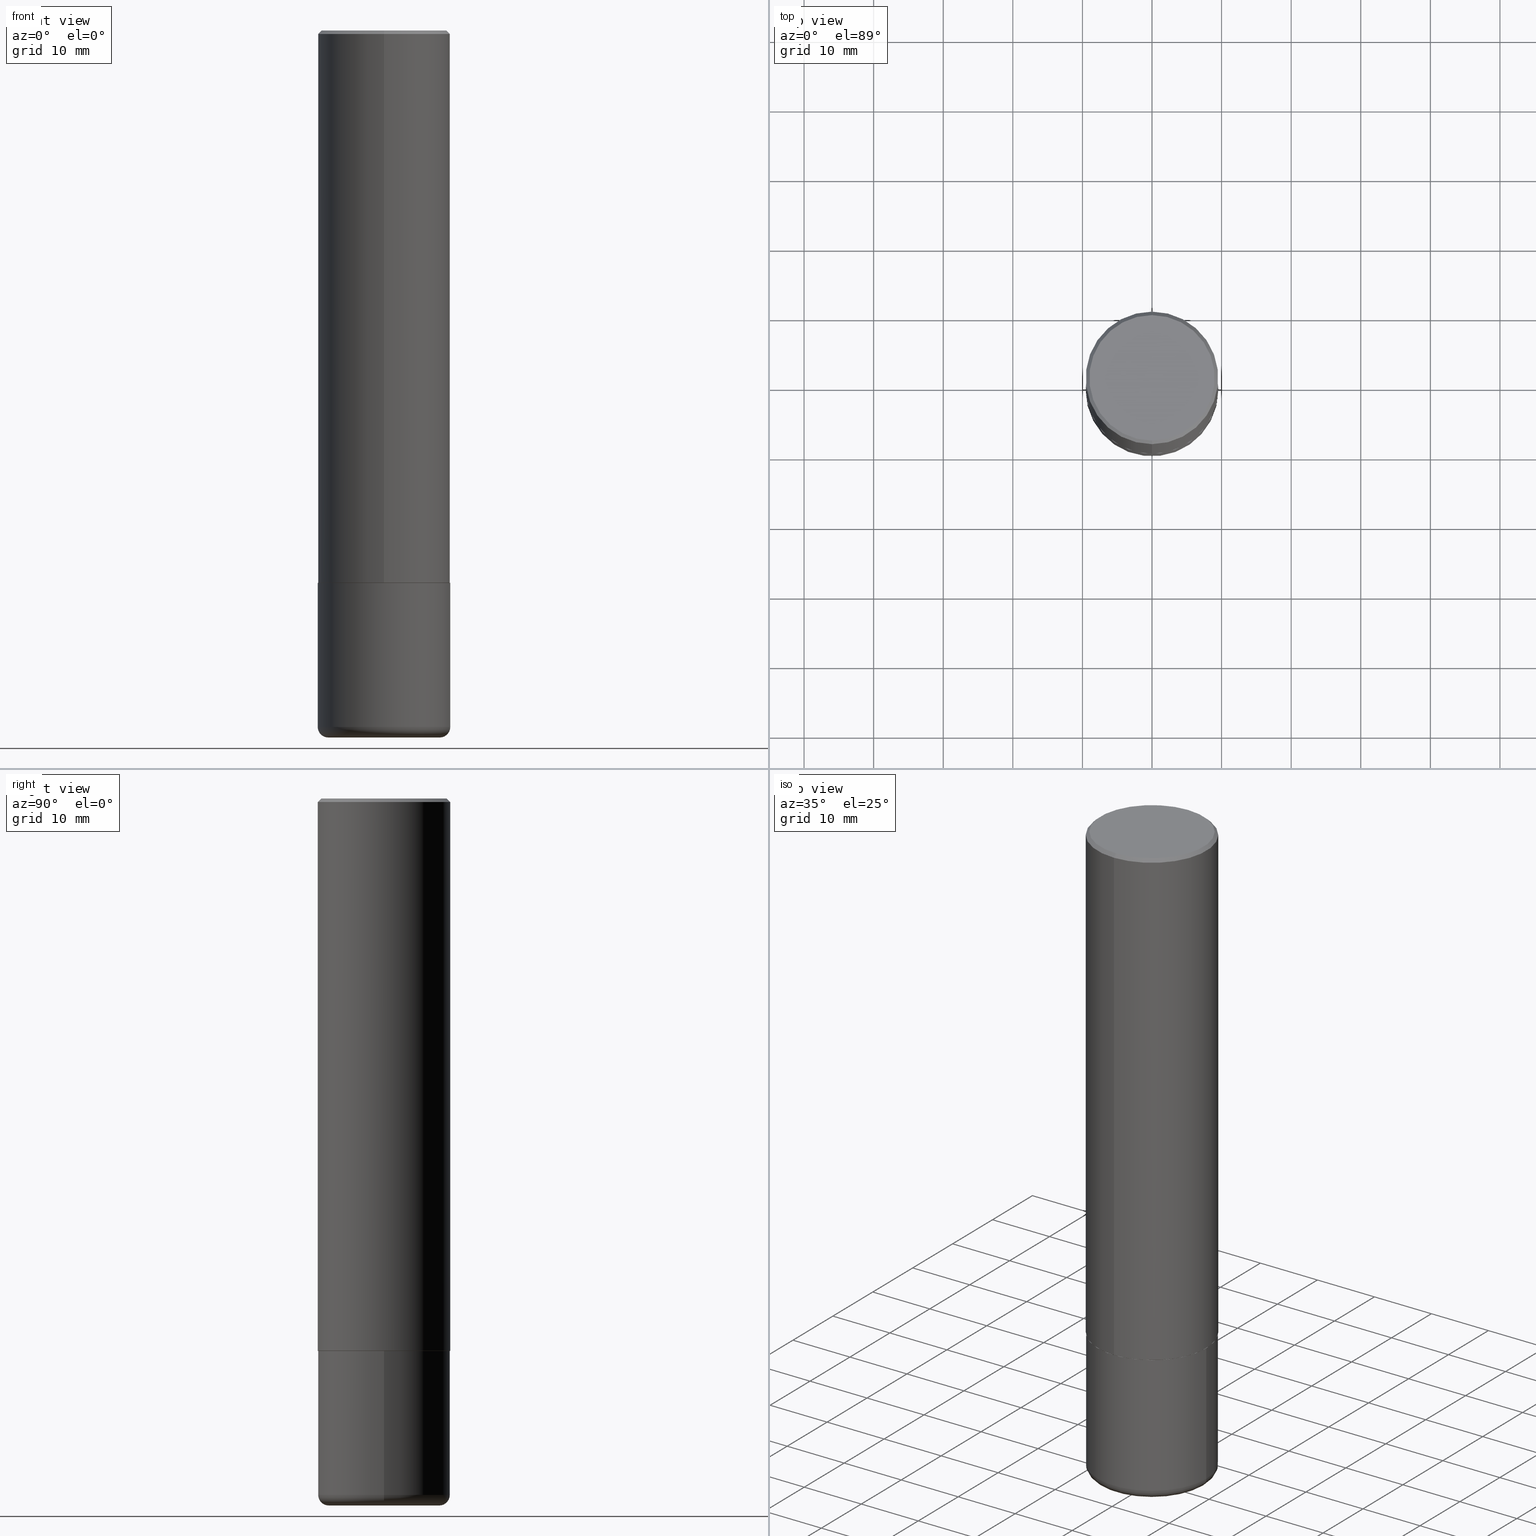
[diagram: canonical four-view strip — front | top / right | iso, engineering-drawing reading convention]
A machine part, canonical four-view strip (front | top / right | iso — engineering-drawing reading convention). The complete STEP part file that produces these views, byte-faithful:
ISO-10303-21;
HEADER;
FILE_DESCRIPTION (( 'STEP AP203' ),
    '1' );
FILE_NAME ('37276.STEP',
    '2024-03-01T22:56:28',
    ( '' ),
    ( '' ),
    'SwSTEP 2.0',
    'SolidWorks 2023',
    '' );
FILE_SCHEMA (( 'CONFIG_CONTROL_DESIGN' ));
ENDSEC;

DATA;
#1 = PRODUCT_DEFINITION_SHAPE ( 'NONE', 'NONE',  #283 ) ;
#2 = ADVANCED_FACE ( 'NONE', ( #366 ), #333, .T. ) ;
#3 = DIRECTION ( 'NONE',  ( -2.445468806185136597E-29, 3.491481338843145583E-15, 1.000000000000000000 ) ) ;
#4 = APPROVAL_ROLE ( '' ) ;
#5 =( GEOMETRIC_REPRESENTATION_CONTEXT ( 3 ) GLOBAL_UNCERTAINTY_ASSIGNED_CONTEXT ( ( #304 ) ) GLOBAL_UNIT_ASSIGNED_CONTEXT ( ( #265, #69, #168 ) ) REPRESENTATION_CONTEXT ( 'NONE', 'WORKASPACE' ) );
#6 = LINE ( 'NONE', #319, #210 ) ;
#7 = ADVANCED_FACE ( 'NONE', ( #116 ), #148, .T. ) ;
#8 = CARTESIAN_POINT ( 'NONE',  ( 7.641292512262471991E-29, -1.090502772753799986E-14, -3.124000000000000554 ) ) ;
#9 = FACE_OUTER_BOUND ( 'NONE', #237, .T. ) ;
#10 = AXIS2_PLACEMENT_3D ( 'NONE', #141, #363, #121 ) ;
#11 = VERTEX_POINT ( 'NONE', #375 ) ;
#12 = ORIENTED_EDGE ( 'NONE', *, *, #266, .F. ) ;
#13 = PLANE ( 'NONE',  #10 ) ;
#14 = VECTOR ( 'NONE', #23, 39.37007874015748143 ) ;
#15 = PRODUCT_DEFINITION_FORMATION_WITH_SPECIFIED_SOURCE ( 'ANY', '', #25, .NOT_KNOWN. ) ;
#16 = ORIENTED_EDGE ( 'NONE', *, *, #211, .T. ) ;
#17 = VERTEX_POINT ( 'NONE', #220 ) ;
#18 = ORIENTED_EDGE ( 'NONE', *, *, #46, .T. ) ;
#19 = CARTESIAN_POINT ( 'NONE',  ( 9.635147096369438236E-29, -1.375643647504199401E-14, -3.939999999999999947 ) ) ;
#20 = DIRECTION ( 'NONE',  ( -2.445468806185136597E-29, 3.491481338843145583E-15, 1.000000000000000000 ) ) ;
#21 = AXIS2_PLACEMENT_3D ( 'NONE', #51, #395, #403 ) ;
#22 = DIRECTION ( 'NONE',  ( -2.445468806185136597E-29, 3.491481338843145583E-15, 1.000000000000000000 ) ) ;
#23 = DIRECTION ( 'NONE',  ( -4.851104656540961119E-15, -0.7071067811865495711, -0.7071067811865454633 ) ) ;
#24 = FACE_OUTER_BOUND ( 'NONE', #336, .T. ) ;
#25 = PRODUCT ( '37276', '37276', '', ( #386 ) ) ;
#26 = DIRECTION ( 'NONE',  ( -2.445996322747269804E-29, 3.490725905101792415E-15, 1.000000000000000000 ) ) ;
#27 = DIRECTION ( 'NONE',  ( -2.445996322747269804E-29, 3.490725905101792415E-15, 1.000000000000000000 ) ) ;
#28 = DIRECTION ( 'NONE',  ( 1.000000000000000000, -6.982962677686269077E-15, 4.883557194083113462E-29 ) ) ;
#29 = APPROVAL_DATE_TIME ( #316, #42 ) ;
#30 = CARTESIAN_POINT ( 'NONE',  ( 9.781875224740546387E-29, -1.396592535537258233E-14, -4.000000000000000000 ) ) ;
#31 = LOCAL_TIME ( 17, 56, 28.00000000000000000, #98 ) ;
#32 = DIRECTION ( 'NONE',  ( -6.982962677686266711E-15, -1.000000000000000000, 2.921762560068730595E-15 ) ) ;
#33 = PERSON_AND_ORGANIZATION_ROLE ( 'creator' ) ;
#34 = EDGE_CURVE ( 'NONE', #295, #45, #296, .T. ) ;
#35 = PERSON_AND_ORGANIZATION ( #137, #322 ) ;
#36 = DIRECTION ( 'NONE',  ( -6.982962677686266711E-15, -1.000000000000000000, 3.490725905101792415E-15 ) ) ;
#37 = CALENDAR_DATE ( 2024, 1, 3 ) ;
#38 = DIRECTION ( 'NONE',  ( -2.445468806185136877E-29, 3.491481338843145188E-15, 1.000000000000000000 ) ) ;
#39 = CIRCLE ( 'NONE', #190, 0.3150000000000000577 ) ;
#40 = VECTOR ( 'NONE', #138, 39.37007874015748143 ) ;
#41 = EDGE_CURVE ( 'NONE', #404, #201, #135, .T. ) ;
#42 = APPROVAL ( #196, 'UNSPECIFIED' ) ;
#43 = ORIENTED_EDGE ( 'NONE', *, *, #338, .T. ) ;
#44 = CONICAL_SURFACE ( 'NONE', #86, 0.3749999999999999445, 0.7853981633974477239 ) ;
#45 = VERTEX_POINT ( 'NONE', #65 ) ;
#46 = EDGE_CURVE ( 'NONE', #11, #401, #261, .T. ) ;
#47 = APPROVAL ( #411, 'UNSPECIFIED' ) ;
#48 = ORIENTED_EDGE ( 'NONE', *, *, #79, .T. ) ;
#49 = EDGE_CURVE ( 'NONE', #201, #17, #337, .T. ) ;
#50 = ORIENTED_EDGE ( 'NONE', *, *, #266, .T. ) ;
#51 = CARTESIAN_POINT ( 'NONE',  ( 7.642090019328551865E-29, -1.091087918388483118E-14, -3.125000000000000000 ) ) ;
#52 = DIRECTION ( 'NONE',  ( -2.445468806185136597E-29, 3.491481338843145583E-15, 1.000000000000000000 ) ) ;
#53 = CARTESIAN_POINT ( 'NONE',  ( -2.611628041454587088E-15, -0.3740000000000109348, -3.124999999999999112 ) ) ;
#54 = DIRECTION ( 'NONE',  ( -2.445996322747269804E-29, 3.490725905101792415E-15, 1.000000000000000000 ) ) ;
#55 = CARTESIAN_POINT ( 'NONE',  ( -2.611628041454587088E-15, -0.3740000000000109348, -3.124999999999999112 ) ) ;
#56 = DIRECTION ( 'NONE',  ( 1.000000000000000000, -6.982962677686266711E-15, 0.000000000000000000 ) ) ;
#57 = CLOSED_SHELL ( 'NONE', ( #7, #194, #172, #256, #2, #405, #111, #126 ) ) ;
#58 = DIRECTION ( 'NONE',  ( -2.445996322747269804E-29, 3.490725905101792415E-15, 1.000000000000000000 ) ) ;
#59 = AXIS2_PLACEMENT_3D ( 'NONE', #170, #3, #127 ) ;
#60 = ADVANCED_FACE ( 'NONE', ( #94 ), #307, .T. ) ;
#61 = COORDINATED_UNIVERSAL_TIME_OFFSET ( 5, 0, .BEHIND. ) ;
#62 = CARTESIAN_POINT ( 'NONE',  ( 2.618611004132350016E-15, 0.3749999999999998890, -0.02000000000000139513 ) ) ;
#63 = CARTESIAN_POINT ( 'NONE',  ( 2.618611004132350016E-15, 0.3749999999999998890, -0.02000000000000139513 ) ) ;
#64 = DATE_AND_TIME ( #92, #286 ) ;
#65 = CARTESIAN_POINT ( 'NONE',  ( 0.3749999999999999445, -1.637504747917434403E-14, -3.939999999999999947 ) ) ;
#66 = CARTESIAN_POINT ( 'NONE',  ( 0.000000000000000000, 0.000000000000000000, 0.000000000000000000 ) ) ;
#67 = EDGE_CURVE ( 'NONE', #205, #45, #217, .T. ) ;
#68 = PERSON_AND_ORGANIZATION ( #137, #322 ) ;
#69 =( NAMED_UNIT ( * ) PLANE_ANGLE_UNIT ( ) SI_UNIT ( $, .RADIAN. ) );
#70 = CARTESIAN_POINT ( 'NONE',  ( -2.618611004132276258E-15, -0.3750000000000113243, -3.123999999999999222 ) ) ;
#71 = CALENDAR_DATE ( 2024, 1, 3 ) ;
#72 = CARTESIAN_POINT ( 'NONE',  ( 4.891992645494561398E-31, -6.981451810203614264E-17, -0.02000000000000008715 ) ) ;
#73 = CARTESIAN_POINT ( 'NONE',  ( 9.635147096369438236E-29, -1.375643647504199401E-14, -3.939999999999999947 ) ) ;
#74 = AXIS2_PLACEMENT_3D ( 'NONE', #216, #390, #163 ) ;
#75 = DIRECTION ( 'NONE',  ( -6.982962677686265922E-15, -1.000000000000000000, 2.913971193241877611E-15 ) ) ;
#76 = EDGE_CURVE ( 'NONE', #81, #17, #367, .T. ) ;
#77 = CIRCLE ( 'NONE', #80, 0.3739999999999999991 ) ;
#78 = DIRECTION ( 'NONE',  ( -6.982962677686266711E-15, -1.000000000000000000, 2.921762560068730595E-15 ) ) ;
#79 = EDGE_CURVE ( 'NONE', #205, #105, #39, .T. ) ;
#80 = AXIS2_PLACEMENT_3D ( 'NONE', #293, #162, #78 ) ;
#81 = VERTEX_POINT ( 'NONE', #62 ) ;
#82 = EDGE_LOOP ( 'NONE', ( #298, #108, #207, #368 ) ) ;
#83 = EDGE_LOOP ( 'NONE', ( #18, #303 ) ) ;
#84 = EDGE_LOOP ( 'NONE', ( #113, #107, #43, #278 ) ) ;
#85 = ORIENTED_EDGE ( 'NONE', *, *, #242, .F. ) ;
#86 = AXIS2_PLACEMENT_3D ( 'NONE', #373, #208, #334 ) ;
#87 = ORIENTED_EDGE ( 'NONE', *, *, #356, .T. ) ;
#88 = CARTESIAN_POINT ( 'NONE',  ( 7.643738508585217927E-29, -1.090851845344310125E-14, -3.125000000000000000 ) ) ;
#89 = DIMENSIONAL_EXPONENTS ( 1.000000000000000000, 0.000000000000000000, 0.000000000000000000, 0.000000000000000000, 0.000000000000000000, 0.000000000000000000, 0.000000000000000000 ) ;
#90 = DIRECTION ( 'NONE',  ( -6.982962677686265922E-15, -1.000000000000000000, 3.490725905101792021E-15 ) ) ;
#91 = ADVANCED_FACE ( 'NONE', ( #184 ), #93, .T. ) ;
#92 = CALENDAR_DATE ( 2024, 1, 3 ) ;
#93 = TOROIDAL_SURFACE ( 'NONE', #123, 0.3150000000000000577, 0.05999999999999994227 ) ;
#94 = FACE_OUTER_BOUND ( 'NONE', #409, .T. ) ;
#95 = CIRCLE ( 'NONE', #244, 0.3749999999999999445 ) ;
#96 = DIRECTION ( 'NONE',  ( 1.000000000000000000, 0.000000000000000000, 0.000000000000000000 ) ) ;
#97 = MANIFOLD_SOLID_BREP ( 'Body-Move/Copy2[2]', #57 ) ;
#98 = COORDINATED_UNIVERSAL_TIME_OFFSET ( 5, 0, .BEHIND. ) ;
#99 = CARTESIAN_POINT ( 'NONE',  ( 9.781875224740546387E-29, -1.396592535537258233E-14, -4.000000000000000000 ) ) ;
#100 = AXIS2_PLACEMENT_3D ( 'NONE', #357, #323, #32 ) ;
#101 = PERSON_AND_ORGANIZATION ( #137, #322 ) ;
#102 = LINE ( 'NONE', #157, #193 ) ;
#103 = APPLICATION_CONTEXT ( 'configuration controlled 3d designs of mechanical parts and assemblies' ) ;
#104 = APPROVAL_PERSON_ORGANIZATION ( #259, #154, #342 ) ;
#105 = VERTEX_POINT ( 'NONE', #189 ) ;
#106 = EDGE_LOOP ( 'NONE', ( #400, #204, #331, #182 ) ) ;
#107 = ORIENTED_EDGE ( 'NONE', *, *, #242, .T. ) ;
#108 = ORIENTED_EDGE ( 'NONE', *, *, #34, .T. ) ;
#109 = CONICAL_SURFACE ( 'NONE', #100, 0.3739999999999999991, 0.7853981633977213939 ) ;
#110 = EDGE_LOOP ( 'NONE', ( #12, #274, #87, #271 ) ) ;
#111 = ADVANCED_FACE ( 'NONE', ( #309 ), #146, .F. ) ;
#112 = CC_DESIGN_DATE_AND_TIME_ASSIGNMENT ( #312, #288, ( #283 ) ) ;
#113 = ORIENTED_EDGE ( 'NONE', *, *, #272, .F. ) ;
#114 = EDGE_LOOP ( 'NONE', ( #362, #85 ) ) ;
#115 = AXIS2_PLACEMENT_3D ( 'NONE', #186, #27, #281 ) ;
#116 = FACE_OUTER_BOUND ( 'NONE', #402, .T. ) ;
#117 = EDGE_CURVE ( 'NONE', #294, #165, #142, .T. ) ;
#118 = DIRECTION ( 'NONE',  ( -6.982962677686266711E-15, -1.000000000000000000, 3.494488891895537218E-15 ) ) ;
#119 = COORDINATED_UNIVERSAL_TIME_OFFSET ( 5, 0, .BEHIND. ) ;
#120 = CARTESIAN_POINT ( 'NONE',  ( 9.635147096369438236E-29, -1.375643647504199401E-14, -3.939999999999999947 ) ) ;
#121 = DIRECTION ( 'NONE',  ( -1.000000000000000000, 6.982962677686265922E-15, -4.876176775795935793E-29 ) ) ;
#122 = PERSON_AND_ORGANIZATION ( #137, #322 ) ;
#123 = AXIS2_PLACEMENT_3D ( 'NONE', #19, #20, #248 ) ;
#124 = CARTESIAN_POINT ( 'NONE',  ( -8.346053035564447328E-45, 1.191080430729187510E-30, 3.412128202298525830E-16 ) ) ;
#125 = APPROVAL_PERSON_ORGANIZATION ( #35, #42, #257 ) ;
#126 = ADVANCED_FACE ( 'NONE', ( #9 ), #129, .F. ) ;
#127 = DIRECTION ( 'NONE',  ( 1.000000000000000000, -6.982962677686267499E-15, 0.000000000000000000 ) ) ;
#128 = ORIENTED_EDGE ( 'NONE', *, *, #67, .F. ) ;
#129 = PLANE ( 'NONE',  #173 ) ;
#130 = DIRECTION ( 'NONE',  ( 1.000000000000000000, -6.982962677686265922E-15, 4.876176775795935793E-29 ) ) ;
#131 = DATE_AND_TIME ( #71, #31 ) ;
#132 = AXIS2_PLACEMENT_3D ( 'NONE', #341, #249, #56 ) ;
#133 = CARTESIAN_POINT ( 'NONE',  ( 2.657429831742851208E-15, 0.3739999999999891189, -3.125000000000001332 ) ) ;
#134 = DIRECTION ( 'NONE',  ( -2.445996322747269804E-29, 3.490725905101792415E-15, 1.000000000000000000 ) ) ;
#135 = CIRCLE ( 'NONE', #202, 0.3549999999999995381 ) ;
#136 = EDGE_CURVE ( 'NONE', #295, #401, #264, .T. ) ;
#137 = PERSON ( 'UNSPECIFIED', 'UNSPECIFIED', 'UNSPECIFIED', ('UNSPECIFIED'), ('UNSPECIFIED'), ('UNSPECIFIED') ) ;
#138 = DIRECTION ( 'NONE',  ( 5.024295867789434219E-15, 0.7071067811867430830, 0.7071067811863519514 ) ) ;
#139 = ORIENTED_EDGE ( 'NONE', *, *, #67, .T. ) ;
#140 = ORIENTED_EDGE ( 'NONE', *, *, #34, .F. ) ;
#141 = CARTESIAN_POINT ( 'NONE',  ( 7.642090019328551865E-29, -1.091087918388483118E-14, -3.125000000000000000 ) ) ;
#142 = CIRCLE ( 'NONE', #74, 0.3750000000000003886 ) ;
#143 = CIRCLE ( 'NONE', #310, 0.05999999999999990757 ) ;
#144 = ORIENTED_EDGE ( 'NONE', *, *, #49, .F. ) ;
#145 = ORIENTED_EDGE ( 'NONE', *, *, #76, .T. ) ;
#146 = PLANE ( 'NONE',  #321 ) ;
#147 = DIRECTION ( 'NONE',  ( 4.937700262164544887E-15, 0.7071067811865446862, -0.7071067811865503483 ) ) ;
#148 = CONICAL_SURFACE ( 'NONE', #383, 0.3739999999999999991, 0.7853981633977213939 ) ;
#149 = AXIS2_PLACEMENT_3D ( 'NONE', #350, #315, #36 ) ;
#150 = DIRECTION ( 'NONE',  ( -2.445996322747270084E-29, 3.490725905101792021E-15, 1.000000000000000000 ) ) ;
#151 = CARTESIAN_POINT ( 'NONE',  ( 2.664535259100376486E-15, 0.3750000000000001665, -1.309022214413172797E-15 ) ) ;
#152 = DIRECTION ( 'NONE',  ( 1.000000000000000000, -6.982962677686279332E-15, 0.000000000000000000 ) ) ;
#153 = CARTESIAN_POINT ( 'NONE',  ( 7.643738508585217927E-29, -1.090851845344310125E-14, -3.125000000000000000 ) ) ;
#154 = APPROVAL ( #227, 'UNSPECIFIED' ) ;
#155 = CC_DESIGN_APPROVAL ( #154, ( #416 ) ) ;
#156 = SHAPE_DEFINITION_REPRESENTATION ( #1, #381 ) ;
#157 = CARTESIAN_POINT ( 'NONE',  ( 0.3750000000000000555, -2.618611004132350016E-15, 1.828566290923476203E-29 ) ) ;
#158 = EDGE_CURVE ( 'NONE', #329, #270, #77, .T. ) ;
#159 = PERSON_AND_ORGANIZATION_ROLE ( 'design_owner' ) ;
#160 = AXIS2_PLACEMENT_3D ( 'NONE', #175, #58, #407 ) ;
#161 = CARTESIAN_POINT ( 'NONE',  ( -0.3749999999999999445, -1.109190121594161832E-14, -3.939999999999999947 ) ) ;
#162 = DIRECTION ( 'NONE',  ( -2.445996322747269804E-29, 3.490725905101792415E-15, 1.000000000000000000 ) ) ;
#163 = DIRECTION ( 'NONE',  ( -6.982962677686265922E-15, -1.000000000000000000, 2.913971193241877611E-15 ) ) ;
#164 = DIRECTION ( 'NONE',  ( -2.445468806185136597E-29, 3.491481338843145583E-15, 1.000000000000000000 ) ) ;
#165 = VERTEX_POINT ( 'NONE', #70 ) ;
#166 = AXIS2_PLACEMENT_3D ( 'NONE', #120, #52, #252 ) ;
#167 = ORIENTED_EDGE ( 'NONE', *, *, #398, .T. ) ;
#168 =( NAMED_UNIT ( * ) SI_UNIT ( $, .STERADIAN. ) SOLID_ANGLE_UNIT ( ) );
#169 = CARTESIAN_POINT ( 'NONE',  ( 2.548781377355485929E-15, 0.3549999999999995381, -8.979948760812821111E-16 ) ) ;
#170 = CARTESIAN_POINT ( 'NONE',  ( 9.781875224740546387E-29, -1.396592535537258233E-14, -4.000000000000000000 ) ) ;
#171 = ORIENTED_EDGE ( 'NONE', *, *, #305, .T. ) ;
#172 = ADVANCED_FACE ( 'NONE', ( #195 ), #218, .T. ) ;
#173 = AXIS2_PLACEMENT_3D ( 'NONE', #382, #229, #313 ) ;
#174 = CC_DESIGN_APPROVAL ( #42, ( #15 ) ) ;
#175 = CARTESIAN_POINT ( 'NONE',  ( 0.000000000000000000, 0.000000000000000000, 0.000000000000000000 ) ) ;
#176 = CARTESIAN_POINT ( 'NONE',  ( 7.642090019328551865E-29, -1.091087918388483118E-14, -3.125000000000000000 ) ) ;
#177 = EDGE_CURVE ( 'NONE', #165, #294, #263, .T. ) ;
#178 = FACE_OUTER_BOUND ( 'NONE', #84, .T. ) ;
#179 = CARTESIAN_POINT ( 'NONE',  ( 0.3150000000000000577, -1.595606971851316740E-14, -3.939999999999999947 ) ) ;
#180 = DIRECTION ( 'NONE',  ( -4.937700262165896205E-15, -0.7071067811867381980, 0.7071067811863568364 ) ) ;
#181 = CARTESIAN_POINT ( 'NONE',  ( 4.891992645494561398E-31, -6.981451810203614264E-17, -0.02000000000000008715 ) ) ;
#182 = ORIENTED_EDGE ( 'NONE', *, *, #239, .F. ) ;
#183 = CALENDAR_DATE ( 2024, 1, 3 ) ;
#184 = FACE_OUTER_BOUND ( 'NONE', #276, .T. ) ;
#185 = FACE_OUTER_BOUND ( 'NONE', #372, .T. ) ;
#186 = CARTESIAN_POINT ( 'NONE',  ( 7.643738508585217927E-29, -1.090851845344310125E-14, -3.125000000000000000 ) ) ;
#187 = CC_DESIGN_PERSON_AND_ORGANIZATION_ASSIGNMENT ( #191, #410, ( #283 ) ) ;
#188 = APPROVAL_DATE_TIME ( #380, #154 ) ;
#189 = CARTESIAN_POINT ( 'NONE',  ( -0.3150000000000000577, -1.140980847683494193E-14, -4.000000000000000000 ) ) ;
#190 = AXIS2_PLACEMENT_3D ( 'NONE', #99, #345, #285 ) ;
#191 = PERSON_AND_ORGANIZATION ( #137, #322 ) ;
#192 = CIRCLE ( 'NONE', #132, 0.3750000000000000555 ) ;
#193 = VECTOR ( 'NONE', #349, 39.37007874015748143 ) ;
#194 = ADVANCED_FACE ( 'NONE', ( #326 ), #364, .T. ) ;
#195 = FACE_OUTER_BOUND ( 'NONE', #106, .T. ) ;
#196 = APPROVAL_STATUS ( 'not_yet_approved' ) ;
#197 = FACE_OUTER_BOUND ( 'NONE', #83, .T. ) ;
#198 = CARTESIAN_POINT ( 'NONE',  ( -0.3150000000000000577, -1.151822685739767881E-14, -3.939999999999999947 ) ) ;
#199 = DIRECTION ( 'NONE',  ( 6.982962677686266711E-15, 1.000000000000000000, -3.494488891895537218E-15 ) ) ;
#200 = LOCAL_TIME ( 17, 56, 28.00000000000000000, #222 ) ;
#201 = VERTEX_POINT ( 'NONE', #406 ) ;
#202 = AXIS2_PLACEMENT_3D ( 'NONE', #124, #26, #377 ) ;
#203 = DIRECTION ( 'NONE',  ( -6.982962677686266711E-15, -1.000000000000000000, 3.494488891895537218E-15 ) ) ;
#204 = ORIENTED_EDGE ( 'NONE', *, *, #49, .T. ) ;
#205 = VERTEX_POINT ( 'NONE', #245 ) ;
#206 = ORIENTED_EDGE ( 'NONE', *, *, #277, .F. ) ;
#207 = ORIENTED_EDGE ( 'NONE', *, *, #371, .T. ) ;
#208 = DIRECTION ( 'NONE',  ( 2.445996322747269804E-29, -3.490725905101792415E-15, -1.000000000000000000 ) ) ;
#209 = AXIS2_PLACEMENT_3D ( 'NONE', #179, #287, #152 ) ;
#210 = VECTOR ( 'NONE', #267, 39.37007874015748143 ) ;
#211 = EDGE_CURVE ( 'NONE', #45, #295, #192, .T. ) ;
#212 = ORIENTED_EDGE ( 'NONE', *, *, #277, .T. ) ;
#213 = LINE ( 'NONE', #63, #328 ) ;
#214 = ORIENTED_EDGE ( 'NONE', *, *, #338, .F. ) ;
#215 = DIRECTION ( 'NONE',  ( -6.982962677686266711E-15, -1.000000000000000000, 2.921762560068730595E-15 ) ) ;
#216 = CARTESIAN_POINT ( 'NONE',  ( 7.641292512262471991E-29, -1.090502772753799986E-14, -3.124000000000000554 ) ) ;
#217 = CIRCLE ( 'NONE', #209, 0.05999999999999990757 ) ;
#218 = CONICAL_SURFACE ( 'NONE', #399, 0.3749999999999999445, 0.7853981633974477239 ) ;
#219 = DATE_TIME_ROLE ( 'classification_date' ) ;
#220 = CARTESIAN_POINT ( 'NONE',  ( -2.572686749164323153E-15, -0.3750000000000000555, -0.01999999999999877570 ) ) ;
#221 = CARTESIAN_POINT ( 'NONE',  ( 2.660982545421652501E-15, 0.3739999999999891189, -3.125000000000001332 ) ) ;
#222 = COORDINATED_UNIVERSAL_TIME_OFFSET ( 5, 0, .BEHIND. ) ;
#223 = DIRECTION ( 'NONE',  ( 1.000000000000000000, -6.982962677686266711E-15, 0.000000000000000000 ) ) ;
#224 = ORIENTED_EDGE ( 'NONE', *, *, #356, .F. ) ;
#225 = LENGTH_MEASURE_WITH_UNIT ( LENGTH_MEASURE( 0.02539999999999999897 ), #314 );
#226 = CARTESIAN_POINT ( 'NONE',  ( -0.3750000000000000555, -9.669122570363036899E-15, -3.125000000000000000 ) ) ;
#227 = APPROVAL_STATUS ( 'not_yet_approved' ) ;
#228 = AXIS2_PLACEMENT_3D ( 'NONE', #320, #269, #130 ) ;
#229 = DIRECTION ( 'NONE',  ( 2.445996322747270084E-29, -3.490725905101792021E-15, -1.000000000000000000 ) ) ;
#230 = PERSON_AND_ORGANIZATION ( #137, #322 ) ;
#231 = CC_DESIGN_PERSON_AND_ORGANIZATION_ASSIGNMENT ( #68, #251, ( #15 ) ) ;
#232 = FACE_OUTER_BOUND ( 'NONE', #354, .T. ) ;
#233 = MANIFOLD_SOLID_BREP ( 'Body-Move/Copy2[1]', #234 ) ;
#234 = CLOSED_SHELL ( 'NONE', ( #387, #91, #327, #340, #343, #60 ) ) ;
#235 = AXIS2_PLACEMENT_3D ( 'NONE', #8, #134, #75 ) ;
#236 = CC_DESIGN_DATE_AND_TIME_ASSIGNMENT ( #64, #219, ( #416 ) ) ;
#237 = EDGE_LOOP ( 'NONE', ( #346, #171 ) ) ;
#238 = ORIENTED_EDGE ( 'NONE', *, *, #391, .F. ) ;
#239 = EDGE_CURVE ( 'NONE', #404, #81, #213, .T. ) ;
#240 = AXIS2_PLACEMENT_3D ( 'NONE', #66, #308, #96 ) ;
#241 = ORIENTED_EDGE ( 'NONE', *, *, #272, .T. ) ;
#242 = EDGE_CURVE ( 'NONE', #270, #329, #280, .T. ) ;
#243 = AXIS2_PLACEMENT_3D ( 'NONE', #181, #247, #118 ) ;
#244 = AXIS2_PLACEMENT_3D ( 'NONE', #385, #330, #203 ) ;
#245 = CARTESIAN_POINT ( 'NONE',  ( 0.3150000000000000577, -1.616555859884375729E-14, -4.000000000000000000 ) ) ;
#246 = ORIENTED_EDGE ( 'NONE', *, *, #239, .T. ) ;
#247 = DIRECTION ( 'NONE',  ( -2.445996322747269804E-29, 3.490725905101792415E-15, 1.000000000000000000 ) ) ;
#248 = DIRECTION ( 'NONE',  ( 1.000000000000000000, -6.982962677686269077E-15, 4.883557194083113462E-29 ) ) ;
#249 = DIRECTION ( 'NONE',  ( -2.445468806185136597E-29, 3.491481338843145583E-15, 1.000000000000000000 ) ) ;
#250 = DIRECTION ( 'NONE',  ( 1.000000000000000000, -6.982962677686265922E-15, 4.876176775795935793E-29 ) ) ;
#251 = PERSON_AND_ORGANIZATION_ROLE ( 'design_supplier' ) ;
#252 = DIRECTION ( 'NONE',  ( 1.000000000000000000, -6.982962677686266711E-15, 0.000000000000000000 ) ) ;
#253 = LINE ( 'NONE', #55, #384 ) ;
#254 = TOROIDAL_SURFACE ( 'NONE', #408, 0.3150000000000000577, 0.05999999999999994227 ) ;
#255 = APPROVAL_DATE_TIME ( #131, #47 ) ;
#256 = ADVANCED_FACE ( 'NONE', ( #185 ), #44, .T. ) ;
#257 = APPROVAL_ROLE ( '' ) ;
#258 = EDGE_CURVE ( 'NONE', #401, #11, #361, .T. ) ;
#259 = PERSON_AND_ORGANIZATION ( #137, #322 ) ;
#260 = CC_DESIGN_PERSON_AND_ORGANIZATION_ASSIGNMENT ( #344, #418, ( #416 ) ) ;
#261 = CIRCLE ( 'NONE', #397, 0.3750000000000000555 ) ;
#262 = APPLICATION_PROTOCOL_DEFINITION ( 'international standard', 'config_control_design', 1994, #103 ) ;
#263 = CIRCLE ( 'NONE', #235, 0.3750000000000003886 ) ;
#264 = LINE ( 'NONE', #325, #415 ) ;
#265 =( CONVERSION_BASED_UNIT ( 'INCH', #225 ) LENGTH_UNIT ( ) NAMED_UNIT ( #89 ) );
#266 = EDGE_CURVE ( 'NONE', #294, #81, #299, .T. ) ;
#267 = DIRECTION ( 'NONE',  ( -2.445996322747270084E-29, 3.490725905101792021E-15, 1.000000000000000000 ) ) ;
#268 = CC_DESIGN_PERSON_AND_ORGANIZATION_ASSIGNMENT ( #230, #33, ( #15 ) ) ;
#269 = DIRECTION ( 'NONE',  ( -2.445468806185136597E-29, 3.491481338843145583E-15, 1.000000000000000000 ) ) ;
#270 = VERTEX_POINT ( 'NONE', #221 ) ;
#271 = ORIENTED_EDGE ( 'NONE', *, *, #76, .F. ) ;
#272 = EDGE_CURVE ( 'NONE', #270, #294, #417, .T. ) ;
#273 = ORIENTED_EDGE ( 'NONE', *, *, #398, .F. ) ;
#274 = ORIENTED_EDGE ( 'NONE', *, *, #117, .T. ) ;
#275 = CIRCLE ( 'NONE', #292, 0.3549999999999995381 ) ;
#276 = EDGE_LOOP ( 'NONE', ( #48, #212, #393, #128 ) ) ;
#277 = EDGE_CURVE ( 'NONE', #105, #295, #143, .T. ) ;
#278 = ORIENTED_EDGE ( 'NONE', *, *, #117, .F. ) ;
#279 = ORIENTED_EDGE ( 'NONE', *, *, #136, .T. ) ;
#280 = CIRCLE ( 'NONE', #115, 0.3739999999999999991 ) ;
#281 = DIRECTION ( 'NONE',  ( -6.982962677686266711E-15, -1.000000000000000000, 2.921762560068730595E-15 ) ) ;
#282 = FACE_OUTER_BOUND ( 'NONE', #82, .T. ) ;
#283 = PRODUCT_DEFINITION ( 'UNKNOWN', '', #15, #358 ) ;
#284 = SECURITY_CLASSIFICATION_LEVEL ( 'unclassified' ) ;
#285 = DIRECTION ( 'NONE',  ( 1.000000000000000000, -6.982962677686267499E-15, 0.000000000000000000 ) ) ;
#286 = LOCAL_TIME ( 17, 56, 28.00000000000000000, #374 ) ;
#287 = DIRECTION ( 'NONE',  ( -6.982962677686266711E-15, -1.000000000000000000, 3.491481338843145583E-15 ) ) ;
#288 = DATE_TIME_ROLE ( 'creation_date' ) ;
#289 = CARTESIAN_POINT ( 'NONE',  ( -8.346053035564447328E-45, 1.191080430729187510E-30, 3.412128202298525830E-16 ) ) ;
#290 = VECTOR ( 'NONE', #351, 39.37007874015748143 ) ;
#291 = DIRECTION ( 'NONE',  ( 7.105427357601001859E-15, 1.000000000000000000, -3.491481338843145583E-15 ) ) ;
#292 = AXIS2_PLACEMENT_3D ( 'NONE', #289, #355, #388 ) ;
#293 = CARTESIAN_POINT ( 'NONE',  ( 7.643738508585217927E-29, -1.090851845344310125E-14, -3.125000000000000000 ) ) ;
#294 = VERTEX_POINT ( 'NONE', #324 ) ;
#295 = VERTEX_POINT ( 'NONE', #161 ) ;
#296 = CIRCLE ( 'NONE', #166, 0.3750000000000000555 ) ;
#297 = APPROVAL_PERSON_ORGANIZATION ( #122, #47, #4 ) ;
#298 = ORIENTED_EDGE ( 'NONE', *, *, #136, .F. ) ;
#299 = LINE ( 'NONE', #151, #290 ) ;
#300 = DIRECTION ( 'NONE',  ( -1.000000000000000000, 6.982962677686265922E-15, -4.876176775795935793E-29 ) ) ;
#301 = DIRECTION ( 'NONE',  ( -2.445468806185136597E-29, 3.491481338843145583E-15, 1.000000000000000000 ) ) ;
#302 = ORIENTED_EDGE ( 'NONE', *, *, #177, .T. ) ;
#303 = ORIENTED_EDGE ( 'NONE', *, *, #258, .T. ) ;
#304 = UNCERTAINTY_MEASURE_WITH_UNIT (LENGTH_MEASURE( 1.000000000000000082E-05 ), #265, 'distance_accuracy_value', 'NONE');
#305 = EDGE_CURVE ( 'NONE', #201, #404, #275, .T. ) ;
#306 = CARTESIAN_POINT ( 'NONE',  ( 0.000000000000000000, 0.000000000000000000, 0.000000000000000000 ) ) ;
#307 = PLANE ( 'NONE',  #360 ) ;
#308 = DIRECTION ( 'NONE',  ( 0.000000000000000000, 0.000000000000000000, 1.000000000000000000 ) ) ;
#309 = FACE_OUTER_BOUND ( 'NONE', #114, .T. ) ;
#310 = AXIS2_PLACEMENT_3D ( 'NONE', #198, #291, #389 ) ;
#311 = CALENDAR_DATE ( 2024, 1, 3 ) ;
#312 = DATE_AND_TIME ( #37, #200 ) ;
#313 = DIRECTION ( 'NONE',  ( 6.982962677686265922E-15, 1.000000000000000000, -3.490725905101792021E-15 ) ) ;
#314 =( LENGTH_UNIT ( ) NAMED_UNIT ( * ) SI_UNIT ( $, .METRE. ) );
#315 = DIRECTION ( 'NONE',  ( -2.445996322747269804E-29, 3.490725905101792415E-15, 1.000000000000000000 ) ) ;
#316 = DATE_AND_TIME ( #311, #353 ) ;
#317 = APPLICATION_CONTEXT ( 'configuration controlled 3d designs of mechanical parts and assemblies' ) ;
#318 = DIRECTION ( 'NONE',  ( 2.445996322747269804E-29, -3.490725905101792415E-15, -1.000000000000000000 ) ) ;
#319 = CARTESIAN_POINT ( 'NONE',  ( -2.618611004132351200E-15, -0.3750000000000001665, 1.309022214413172797E-15 ) ) ;
#320 = CARTESIAN_POINT ( 'NONE',  ( 0.000000000000000000, 0.000000000000000000, 0.000000000000000000 ) ) ;
#321 = AXIS2_PLACEMENT_3D ( 'NONE', #88, #150, #90 ) ;
#322 = ORGANIZATION ( 'UNSPECIFIED', 'UNSPECIFIED', '' ) ;
#323 = DIRECTION ( 'NONE',  ( -2.445996322747269804E-29, 3.490725905101792415E-15, 1.000000000000000000 ) ) ;
#324 = CARTESIAN_POINT ( 'NONE',  ( 2.664535259100415534E-15, 0.3749999999999894529, -3.124000000000001442 ) ) ;
#325 = CARTESIAN_POINT ( 'NONE',  ( -0.3750000000000000555, 2.664535259100376091E-15, -1.844600658845589598E-29 ) ) ;
#326 = FACE_OUTER_BOUND ( 'NONE', #332, .T. ) ;
#327 = ADVANCED_FACE ( 'NONE', ( #197 ), #13, .F. ) ;
#328 = VECTOR ( 'NONE', #147, 39.37007874015748143 ) ;
#329 = VERTEX_POINT ( 'NONE', #53 ) ;
#330 = DIRECTION ( 'NONE',  ( -2.445996322747269804E-29, 3.490725905101792415E-15, 1.000000000000000000 ) ) ;
#331 = ORIENTED_EDGE ( 'NONE', *, *, #391, .T. ) ;
#332 = EDGE_LOOP ( 'NONE', ( #302, #50, #238, #224 ) ) ;
#333 = CYLINDRICAL_SURFACE ( 'NONE', #160, 0.3750000000000001665 ) ;
#334 = DIRECTION ( 'NONE',  ( 6.982962677686266711E-15, 1.000000000000000000, -3.494488891895537218E-15 ) ) ;
#335 = LOCAL_TIME ( 17, 56, 28.00000000000000000, #61 ) ;
#336 = EDGE_LOOP ( 'NONE', ( #206, #167, #139, #140 ) ) ;
#337 = LINE ( 'NONE', #412, #14 ) ;
#338 = EDGE_CURVE ( 'NONE', #329, #165, #253, .T. ) ;
#339 = CYLINDRICAL_SURFACE ( 'NONE', #369, 0.3750000000000000555 ) ;
#340 = ADVANCED_FACE ( 'NONE', ( #282 ), #339, .T. ) ;
#341 = CARTESIAN_POINT ( 'NONE',  ( 9.635147096369438236E-29, -1.375643647504199401E-14, -3.939999999999999947 ) ) ;
#342 = APPROVAL_ROLE ( '' ) ;
#343 = ADVANCED_FACE ( 'NONE', ( #24 ), #254, .T. ) ;
#344 = PERSON_AND_ORGANIZATION ( #137, #322 ) ;
#345 = DIRECTION ( 'NONE',  ( -2.445468806185136597E-29, 3.491481338843145583E-15, 1.000000000000000000 ) ) ;
#346 = ORIENTED_EDGE ( 'NONE', *, *, #41, .T. ) ;
#347 = PRODUCT_RELATED_PRODUCT_CATEGORY ( 'detail', '', ( #25 ) ) ;
#348 = CIRCLE ( 'NONE', #59, 0.3150000000000000577 ) ;
#349 = DIRECTION ( 'NONE',  ( -2.445468806185136877E-29, 3.491481338843145188E-15, 1.000000000000000000 ) ) ;
#350 = CARTESIAN_POINT ( 'NONE',  ( 0.000000000000000000, 0.000000000000000000, 0.000000000000000000 ) ) ;
#351 = DIRECTION ( 'NONE',  ( -2.445996322747270084E-29, 3.490725905101792021E-15, 1.000000000000000000 ) ) ;
#352 = CYLINDRICAL_SURFACE ( 'NONE', #228, 0.3750000000000000555 ) ;
#353 = LOCAL_TIME ( 17, 56, 28.00000000000000000, #119 ) ;
#354 = EDGE_LOOP ( 'NONE', ( #16, #279, #370, #359 ) ) ;
#355 = DIRECTION ( 'NONE',  ( -2.445996322747269804E-29, 3.490725905101792415E-15, 1.000000000000000000 ) ) ;
#356 = EDGE_CURVE ( 'NONE', #165, #17, #6, .T. ) ;
#357 = CARTESIAN_POINT ( 'NONE',  ( 7.643738508585217927E-29, -1.090851845344310125E-14, -3.125000000000000000 ) ) ;
#358 = DESIGN_CONTEXT ( 'detailed design', #317, 'design' ) ;
#359 = ORIENTED_EDGE ( 'NONE', *, *, #371, .F. ) ;
#360 = AXIS2_PLACEMENT_3D ( 'NONE', #30, #379, #300 ) ;
#361 = CIRCLE ( 'NONE', #21, 0.3750000000000000555 ) ;
#362 = ORIENTED_EDGE ( 'NONE', *, *, #158, .F. ) ;
#363 = DIRECTION ( 'NONE',  ( 2.438088387897960049E-29, -3.491481338843145188E-15, -1.000000000000000000 ) ) ;
#364 = CYLINDRICAL_SURFACE ( 'NONE', #149, 0.3750000000000001665 ) ;
#365 = ORIENTED_EDGE ( 'NONE', *, *, #177, .F. ) ;
#366 = FACE_OUTER_BOUND ( 'NONE', #110, .T. ) ;
#367 = CIRCLE ( 'NONE', #243, 0.3749999999999999445 ) ;
#368 = ORIENTED_EDGE ( 'NONE', *, *, #258, .F. ) ;
#369 = AXIS2_PLACEMENT_3D ( 'NONE', #306, #22, #250 ) ;
#370 = ORIENTED_EDGE ( 'NONE', *, *, #46, .F. ) ;
#371 = EDGE_CURVE ( 'NONE', #45, #11, #102, .T. ) ;
#372 = EDGE_LOOP ( 'NONE', ( #144, #396, #246, #145 ) ) ;
#373 = CARTESIAN_POINT ( 'NONE',  ( 4.891992645494561398E-31, -6.981451810203614264E-17, -0.02000000000000008715 ) ) ;
#374 = COORDINATED_UNIVERSAL_TIME_OFFSET ( 5, 0, .BEHIND. ) ;
#375 = CARTESIAN_POINT ( 'NONE',  ( 0.3750000000000000555, -1.352949018801718119E-14, -3.125000000000000000 ) ) ;
#376 = CC_DESIGN_APPROVAL ( #47, ( #283 ) ) ;
#377 = DIRECTION ( 'NONE',  ( -6.982962677686266711E-15, -1.000000000000000000, 3.490725905101792415E-15 ) ) ;
#378 = APPLICATION_PROTOCOL_DEFINITION ( 'international standard', 'config_control_design', 1994, #317 ) ;
#379 = DIRECTION ( 'NONE',  ( 2.438088387897960049E-29, -3.491481338843145188E-15, -1.000000000000000000 ) ) ;
#380 = DATE_AND_TIME ( #183, #335 ) ;
#381 = ADVANCED_BREP_SHAPE_REPRESENTATION ( '37276', ( #233, #97, #240 ), #5 ) ;
#382 = CARTESIAN_POINT ( 'NONE',  ( 2.478951750578621448E-15, 0.3549999999999995381, -1.068601286196208575E-15 ) ) ;
#383 = AXIS2_PLACEMENT_3D ( 'NONE', #153, #54, #215 ) ;
#384 = VECTOR ( 'NONE', #180, 39.37007874015748143 ) ;
#385 = CARTESIAN_POINT ( 'NONE',  ( 4.891992645494561398E-31, -6.981451810203614264E-17, -0.02000000000000008715 ) ) ;
#386 = MECHANICAL_CONTEXT ( 'NONE', #103, 'mechanical' ) ;
#387 = ADVANCED_FACE ( 'NONE', ( #232 ), #352, .T. ) ;
#388 = DIRECTION ( 'NONE',  ( -6.982962677686266711E-15, -1.000000000000000000, 3.490725905101792415E-15 ) ) ;
#389 = DIRECTION ( 'NONE',  ( -1.000000000000000000, 7.105427357601001859E-15, 0.000000000000000000 ) ) ;
#390 = DIRECTION ( 'NONE',  ( -2.445996322747269804E-29, 3.490725905101792415E-15, 1.000000000000000000 ) ) ;
#391 = EDGE_CURVE ( 'NONE', #17, #81, #95, .T. ) ;
#392 = CC_DESIGN_SECURITY_CLASSIFICATION ( #416, ( #15 ) ) ;
#393 = ORIENTED_EDGE ( 'NONE', *, *, #211, .F. ) ;
#394 = ORIENTED_EDGE ( 'NONE', *, *, #79, .F. ) ;
#395 = DIRECTION ( 'NONE',  ( -2.445468806185136597E-29, 3.491481338843145583E-15, 1.000000000000000000 ) ) ;
#396 = ORIENTED_EDGE ( 'NONE', *, *, #41, .F. ) ;
#397 = AXIS2_PLACEMENT_3D ( 'NONE', #176, #301, #223 ) ;
#398 = EDGE_CURVE ( 'NONE', #105, #205, #348, .T. ) ;
#399 = AXIS2_PLACEMENT_3D ( 'NONE', #72, #318, #199 ) ;
#400 = ORIENTED_EDGE ( 'NONE', *, *, #305, .F. ) ;
#401 = VERTEX_POINT ( 'NONE', #226 ) ;
#402 = EDGE_LOOP ( 'NONE', ( #414, #241, #365, #214 ) ) ;
#403 = DIRECTION ( 'NONE',  ( 1.000000000000000000, -6.982962677686266711E-15, 0.000000000000000000 ) ) ;
#404 = VERTEX_POINT ( 'NONE', #169 ) ;
#405 = ADVANCED_FACE ( 'NONE', ( #178 ), #109, .T. ) ;
#406 = CARTESIAN_POINT ( 'NONE',  ( -2.504081769186606638E-15, -0.3549999999999995381, 1.580420516540987376E-15 ) ) ;
#407 = DIRECTION ( 'NONE',  ( -6.982962677686266711E-15, -1.000000000000000000, 3.490725905101792415E-15 ) ) ;
#408 = AXIS2_PLACEMENT_3D ( 'NONE', #73, #164, #28 ) ;
#409 = EDGE_LOOP ( 'NONE', ( #394, #273 ) ) ;
#410 = PERSON_AND_ORGANIZATION_ROLE ( 'creator' ) ;
#411 = APPROVAL_STATUS ( 'not_yet_approved' ) ;
#412 = CARTESIAN_POINT ( 'NONE',  ( -2.572686749164323153E-15, -0.3750000000000000555, -0.01999999999999877570 ) ) ;
#413 = CC_DESIGN_PERSON_AND_ORGANIZATION_ASSIGNMENT ( #101, #159, ( #25 ) ) ;
#414 = ORIENTED_EDGE ( 'NONE', *, *, #158, .T. ) ;
#415 = VECTOR ( 'NONE', #38, 39.37007874015748143 ) ;
#416 = SECURITY_CLASSIFICATION ( '', '', #284 ) ;
#417 = LINE ( 'NONE', #133, #40 ) ;
#418 = PERSON_AND_ORGANIZATION_ROLE ( 'classification_officer' ) ;
ENDSEC;
END-ISO-10303-21;
